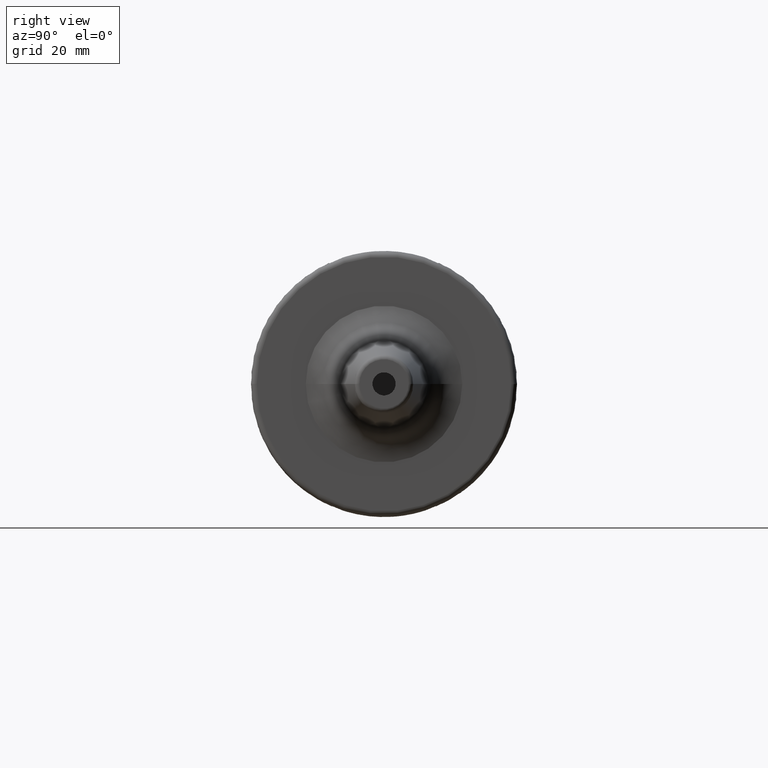
[diagram: clean part render]
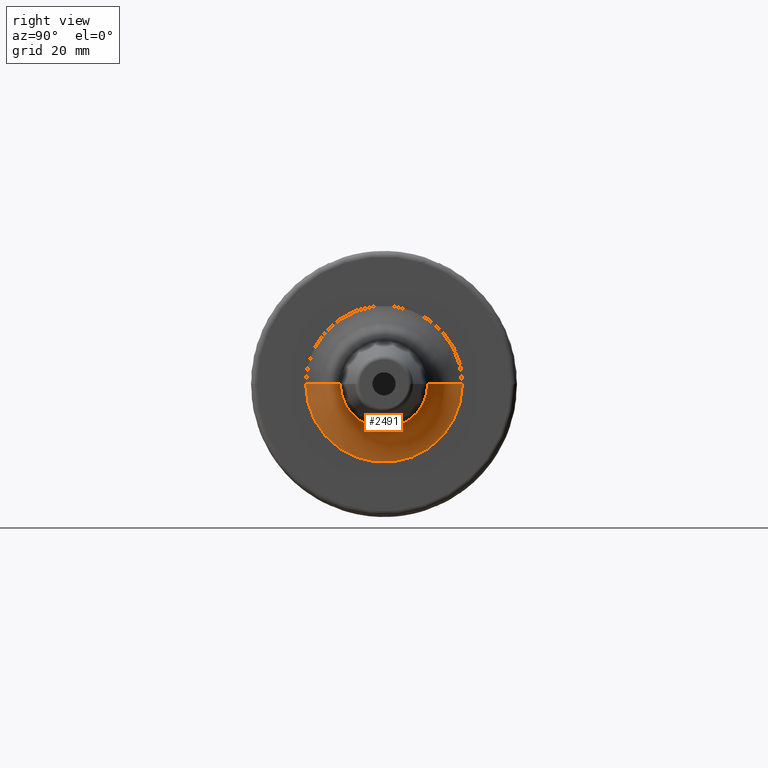
[diagram: same view with one face highlighted and labeled with its STEP entity id]
A machine part, right view. The second image highlights one B-rep face of the part: STEP entity #2491.
In plain terms, the highlighted toroidal blend (fillet) surface has major radius 13.537 mm and minor (blend) radius 6 mm.
Its self-contained STEP definition (entity closure, byte-faithful):
#822=CARTESIAN_POINT('',(2.2E1,0.E0,0.E0));
#823=DIRECTION('',(1.E0,0.E0,0.E0));
#824=DIRECTION('',(0.E0,-1.E0,0.E0));
#825=AXIS2_PLACEMENT_3D('',#822,#823,#824);
#832=CARTESIAN_POINT('',(2.8E1,-1.353700780928E1,8.136952223126E-11));
#833=DIRECTION('',(0.E0,-6.010900110986E-12,-1.E0));
#834=DIRECTION('',(-1.E0,7.670900951477E-13,0.E0));
#835=AXIS2_PLACEMENT_3D('',#832,#833,#834);
#837=CARTESIAN_POINT('',(2.8E1,1.353700780928E1,-8.137129858810E-11));
#838=DIRECTION('',(0.E0,6.011028480524E-12,1.E0));
#839=DIRECTION('',(-1.E0,-7.673861546209E-13,0.E0));
#840=AXIS2_PLACEMENT_3D('',#837,#838,#839);
#871=CARTESIAN_POINT('',(2.752924542563E1,0.E0,0.E0));
#872=DIRECTION('',(1.E0,0.E0,0.E0));
#873=DIRECTION('',(0.E0,-1.E0,0.E0));
#874=AXIS2_PLACEMENT_3D('',#871,#872,#873);
#1373=CARTESIAN_POINT('',(2.2E1,-1.353700780928E1,0.E0));
#1374=CARTESIAN_POINT('',(2.2E1,1.353700780928E1,0.E0));
#1375=VERTEX_POINT('',#1373);
#1376=VERTEX_POINT('',#1374);
#1377=CARTESIAN_POINT('',(2.752924542563E1,-7.555503806886E0,0.E0));
#1378=CARTESIAN_POINT('',(2.752924542563E1,7.555503806886E0,0.E0));
#1379=VERTEX_POINT('',#1377);
#1380=VERTEX_POINT('',#1378);
#2477=CARTESIAN_POINT('',(2.8E1,0.E0,0.E0));
#2478=DIRECTION('',(1.E0,0.E0,0.E0));
#2479=DIRECTION('',(0.E0,-9.997197930606E-1,2.367140390575E-2));
#2480=AXIS2_PLACEMENT_3D('',#2477,#2478,#2479);
#2481=TOROIDAL_SURFACE('',#2480,1.353700780928E1,6.E0);
#2482=ORIENTED_EDGE('',*,*,#2470,.F.);
#2484=ORIENTED_EDGE('',*,*,#2483,.T.);
#2486=ORIENTED_EDGE('',*,*,#2485,.T.);
#2488=ORIENTED_EDGE('',*,*,#2487,.F.);
#2489=EDGE_LOOP('',(#2482,#2484,#2486,#2488));
#2490=FACE_OUTER_BOUND('',#2489,.F.);
#2491=ADVANCED_FACE('',(#2490),#2481,.F.);
#826=CIRCLE('',#825,1.353700780928E1);
#836=CIRCLE('',#835,6.E0);
#841=CIRCLE('',#840,6.E0);
#875=CIRCLE('',#874,7.555503806886E0);
#2470=EDGE_CURVE('',#1375,#1376,#826,.T.);
#2483=EDGE_CURVE('',#1375,#1379,#836,.T.);
#2485=EDGE_CURVE('',#1379,#1380,#875,.T.);
#2487=EDGE_CURVE('',#1376,#1380,#841,.T.);